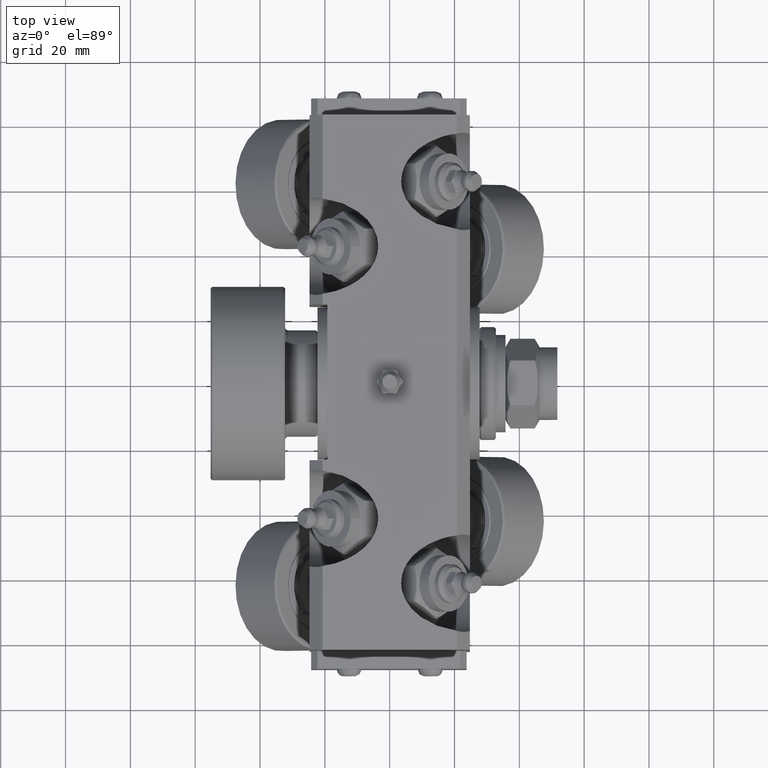
[diagram: clean part render]
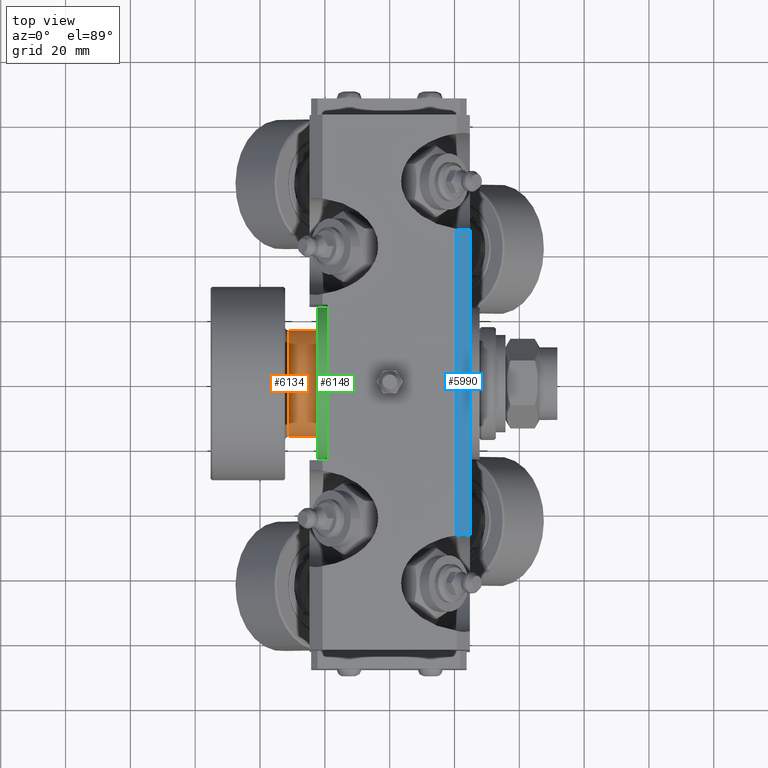
[diagram: same view with three faces highlighted in distinct colors, each labeled with its STEP entity id]
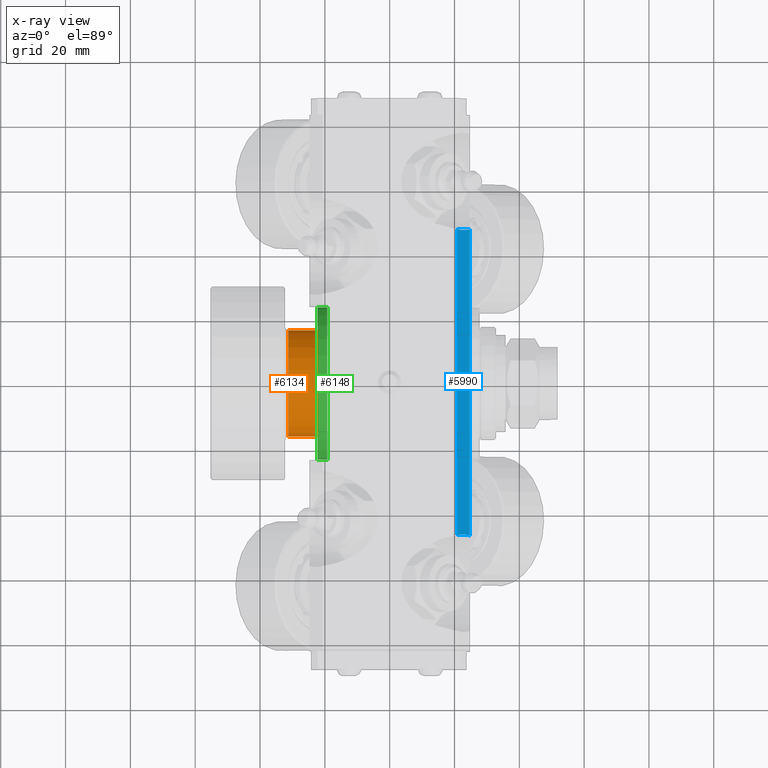
[diagram: x-ray of the same camera — body ghosted, the three highlighted faces saturated]
A machine part, top view with three faces highlighted in distinct colors.
The next image is the same camera in x-ray (body ghosted, the three faces saturated) — at least one of them is partly hidden behind the body in this view.
Their STEP definitions:

[orange] entity #6134 — the highlighted cylindrical surface (bore or boss wall) has radius 16.5 mm, axis along (-1, 0, 0).
#856=FACE_OUTER_BOUND('',#1250,.T.);
#1250=EDGE_LOOP('',(#5215,#5216,#5217,#5218,#5219));
#1651=CIRCLE('',#7176,16.5);
#1654=CIRCLE('',#7180,16.5);
#1655=CIRCLE('',#7181,16.5);
#2047=LINE('',#12411,#2395);
#2395=VECTOR('',#8610,16.5);
#2962=VERTEX_POINT('',#12404);
#2964=VERTEX_POINT('',#12410);
#2965=VERTEX_POINT('',#12412);
#3748=EDGE_CURVE('',#2962,#2962,#1651,.T.);
#3751=EDGE_CURVE('',#2962,#2964,#2047,.T.);
#3752=EDGE_CURVE('',#2965,#2964,#1654,.T.);
#3753=EDGE_CURVE('',#2964,#2965,#1655,.T.);
#5215=ORIENTED_EDGE('',*,*,#3748,.F.);
#5216=ORIENTED_EDGE('',*,*,#3751,.T.);
#5217=ORIENTED_EDGE('',*,*,#3752,.F.);
#5218=ORIENTED_EDGE('',*,*,#3753,.F.);
#5219=ORIENTED_EDGE('',*,*,#3751,.F.);
#5903=CYLINDRICAL_SURFACE('',#7179,16.5);
#6134=ADVANCED_FACE('',(#856),#5903,.T.);
#7176=AXIS2_PLACEMENT_3D('',#12405,#8602,#8603);
#7179=AXIS2_PLACEMENT_3D('',#12409,#8608,#8609);
#7180=AXIS2_PLACEMENT_3D('',#12413,#8611,#8612);
#7181=AXIS2_PLACEMENT_3D('',#12414,#8613,#8614);
#8602=DIRECTION('center_axis',(-1.,0.,1.46957615897682E-15));
#8603=DIRECTION('ref_axis',(-1.47188658567729E-15,1.22464679914735E-16,
-1.));
#8608=DIRECTION('center_axis',(-1.,0.,1.46957615897682E-15));
#8609=DIRECTION('ref_axis',(1.36325196093122E-15,0.,1.));
#8610=DIRECTION('',(1.,0.,-1.46957615897682E-15));
#8611=DIRECTION('center_axis',(1.,0.,-1.46957615897682E-15));
#8612=DIRECTION('ref_axis',(-1.36325196093122E-15,0.,-1.));
#8613=DIRECTION('center_axis',(1.,0.,-1.46957615897682E-15));
#8614=DIRECTION('ref_axis',(-1.36325196093122E-15,0.,-1.));
#12404=CARTESIAN_POINT('',(-29.5,-2.02066721859313E-15,-16.4999999999999));
#12405=CARTESIAN_POINT('Origin',(-29.5,0.,5.31409936683167E-14));
#12409=CARTESIAN_POINT('Origin',(-25.5,0.,4.72626890324094E-14));
#12410=CARTESIAN_POINT('',(-21.,-2.02066721859313E-15,-16.4999999999999));
#12411=CARTESIAN_POINT('',(-25.5,-2.02066721859313E-15,-16.4999999999999));
#12412=CARTESIAN_POINT('',(-21.,-2.02066721859313E-15,16.5));
#12413=CARTESIAN_POINT('Origin',(-21.,0.,4.06495963170136E-14));
#12414=CARTESIAN_POINT('Origin',(-21.,0.,4.06495963170136E-14));

[blue] entity #5990 — the highlighted planar face has unit normal (0.7071, 0, 0.7071).
#529=PLANE('',#6836);
#712=FACE_OUTER_BOUND('',#1061,.T.);
#1061=EDGE_LOOP('',(#4444,#4445,#4446,#4447));
#1462=CIRCLE('',#6820,15.);
#1467=CIRCLE('',#6828,15.);
#1945=LINE('',#10357,#2293);
#1954=LINE('',#10394,#2302);
#2293=VECTOR('',#7778,10.);
#2302=VECTOR('',#7819,10.);
#2684=VERTEX_POINT('',#10354);
#2685=VERTEX_POINT('',#10356);
#2690=VERTEX_POINT('',#10369);
#2694=VERTEX_POINT('',#10380);
#3340=EDGE_CURVE('',#2685,#2684,#1945,.T.);
#3347=EDGE_CURVE('',#2684,#2690,#1462,.T.);
#3355=EDGE_CURVE('',#2694,#2685,#1467,.T.);
#3359=EDGE_CURVE('',#2690,#2694,#1954,.T.);
#4444=ORIENTED_EDGE('',*,*,#3347,.T.);
#4445=ORIENTED_EDGE('',*,*,#3359,.T.);
#4446=ORIENTED_EDGE('',*,*,#3355,.T.);
#4447=ORIENTED_EDGE('',*,*,#3340,.T.);
#5990=ADVANCED_FACE('',(#712),#529,.T.);
#6820=AXIS2_PLACEMENT_3D('',#10372,#7792,#7793);
#6828=AXIS2_PLACEMENT_3D('',#10386,#7810,#7811);
#6836=AXIS2_PLACEMENT_3D('',#10404,#7834,#7835);
#7778=DIRECTION('',(0.,-1.,0.));
#7792=DIRECTION('center_axis',(-0.707106781186548,0.,-0.707106781186547));
#7793=DIRECTION('ref_axis',(0.707106781186547,0.,-0.707106781186548));
#7810=DIRECTION('center_axis',(-0.707106781186548,0.,-0.707106781186547));
#7811=DIRECTION('ref_axis',(0.707106781186547,0.,-0.707106781186548));
#7819=DIRECTION('',(0.,1.,0.));
#7834=DIRECTION('center_axis',(0.707106781186548,0.,0.707106781186547));
#7835=DIRECTION('ref_axis',(0.707106781186547,0.,-0.707106781186548));
#10354=CARTESIAN_POINT('',(20.714,-47.2739906288228,24.75));
#10356=CARTESIAN_POINT('',(20.714,47.2739906288227,24.75));
#10357=CARTESIAN_POINT('',(20.714,0.,24.75));
#10369=CARTESIAN_POINT('',(24.75,-47.2739906288228,20.714));
#10372=CARTESIAN_POINT('Origin',(22.732,-62.,22.732));
#10380=CARTESIAN_POINT('',(24.75,47.2739906288228,20.714));
#10386=CARTESIAN_POINT('Origin',(22.732,62.,22.732));
#10394=CARTESIAN_POINT('',(24.75,0.,20.714));
#10404=CARTESIAN_POINT('Origin',(22.732,0.,22.732));

[green] entity #6148 — the highlighted cylindrical surface (bore or boss wall) has radius 23.5 mm, axis along (1, 0, -0).
#870=FACE_OUTER_BOUND('',#1279,.T.);
#1279=EDGE_LOOP('',(#5280,#5281,#5282,#5283));
#1669=CIRCLE('',#7209,23.5);
#1670=CIRCLE('',#7211,23.5);
#2056=LINE('',#12468,#2404);
#2404=VECTOR('',#8683,23.5);
#2979=VERTEX_POINT('',#12463);
#2980=VERTEX_POINT('',#12466);
#3775=EDGE_CURVE('',#2979,#2979,#1669,.T.);
#3776=EDGE_CURVE('',#2980,#2980,#1670,.T.);
#3777=EDGE_CURVE('',#2980,#2979,#2056,.T.);
#5280=ORIENTED_EDGE('',*,*,#3776,.F.);
#5281=ORIENTED_EDGE('',*,*,#3777,.T.);
#5282=ORIENTED_EDGE('',*,*,#3775,.F.);
#5283=ORIENTED_EDGE('',*,*,#3777,.F.);
#5907=CYLINDRICAL_SURFACE('',#7210,23.5);
#6148=ADVANCED_FACE('',(#870),#5907,.T.);
#7209=AXIS2_PLACEMENT_3D('',#12464,#8677,#8678);
#7210=AXIS2_PLACEMENT_3D('',#12465,#8679,#8680);
#7211=AXIS2_PLACEMENT_3D('',#12467,#8681,#8682);
#8677=DIRECTION('center_axis',(-1.,0.,0.));
#8678=DIRECTION('ref_axis',(0.,-1.,0.));
#8679=DIRECTION('center_axis',(1.,0.,0.));
#8680=DIRECTION('ref_axis',(0.,-1.,0.));
#8681=DIRECTION('center_axis',(1.,0.,0.));
#8682=DIRECTION('ref_axis',(0.,-1.,0.));
#8683=DIRECTION('',(-1.,0.,0.));
#12463=CARTESIAN_POINT('',(-1.5,23.5,2.87791997799628E-15));
#12464=CARTESIAN_POINT('Origin',(-1.5,0.,0.));
#12465=CARTESIAN_POINT('Origin',(0.,0.,0.));
#12466=CARTESIAN_POINT('',(1.5,23.5,2.87791997799628E-15));
#12467=CARTESIAN_POINT('Origin',(1.5,0.,0.));
#12468=CARTESIAN_POINT('',(0.,23.5,2.87791997799628E-15));